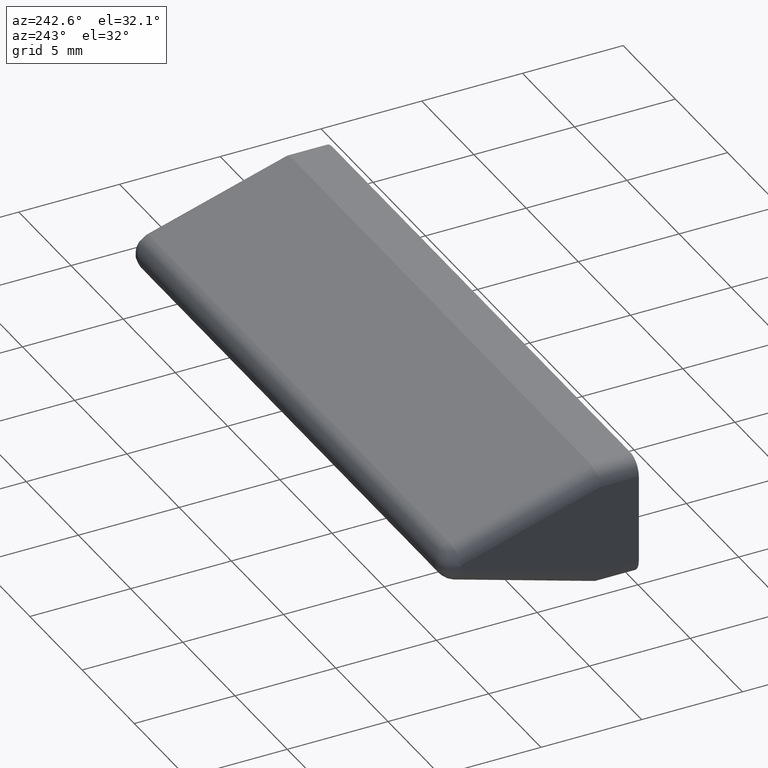
[diagram: clean part render]
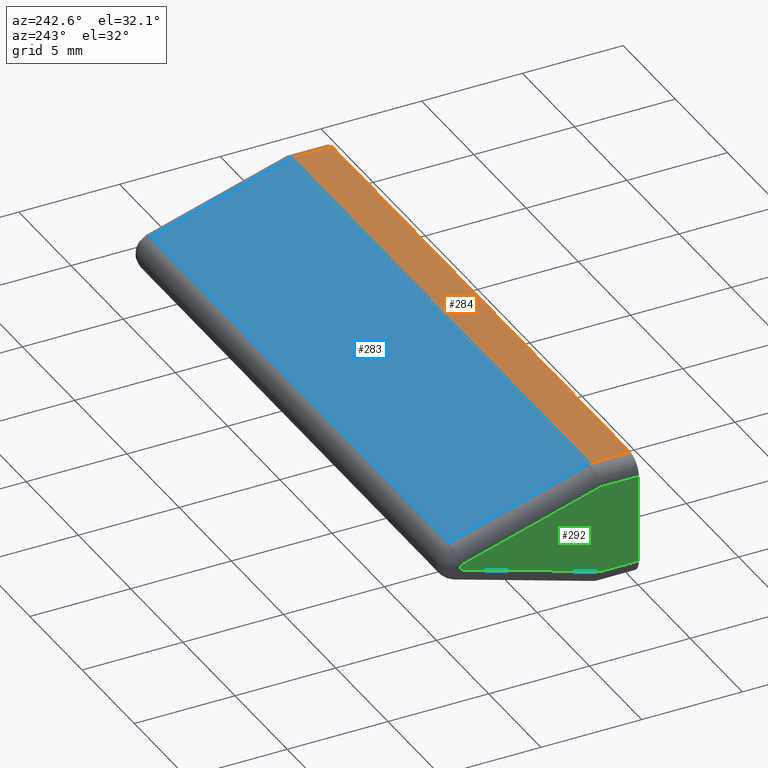
[diagram: same view with three faces highlighted in distinct colors, each labeled with its STEP entity id]
A machine part, auxiliary view with three faces highlighted in distinct colors.
Their STEP definitions:

[orange] entity #284 — the highlighted planar face has unit normal (0, 0, 1).
#16=PLANE('',#333);
#31=FACE_OUTER_BOUND('',#49,.T.);
#49=EDGE_LOOP('',(#216,#217,#218,#219));
#83=LINE('',#487,#107);
#86=LINE('',#496,#110);
#88=LINE('',#500,#112);
#89=LINE('',#501,#113);
#107=VECTOR('',#383,10.);
#110=VECTOR('',#392,10.);
#112=VECTOR('',#396,10.);
#113=VECTOR('',#397,10.);
#128=VERTEX_POINT('',#451);
#135=VERTEX_POINT('',#485);
#138=VERTEX_POINT('',#495);
#139=VERTEX_POINT('',#499);
#163=EDGE_CURVE('',#135,#128,#83,.T.);
#167=EDGE_CURVE('',#128,#138,#86,.T.);
#169=EDGE_CURVE('',#135,#139,#88,.T.);
#170=EDGE_CURVE('',#138,#139,#89,.T.);
#216=ORIENTED_EDGE('',*,*,#163,.F.);
#217=ORIENTED_EDGE('',*,*,#169,.T.);
#218=ORIENTED_EDGE('',*,*,#170,.F.);
#219=ORIENTED_EDGE('',*,*,#167,.F.);
#284=ADVANCED_FACE('',(#31),#16,.T.);
#333=AXIS2_PLACEMENT_3D('',#498,#394,#395);
#383=DIRECTION('',(0.,1.,0.));
#392=DIRECTION('',(1.,0.,0.));
#394=DIRECTION('center_axis',(0.,0.,1.));
#395=DIRECTION('ref_axis',(0.,-1.,0.));
#396=DIRECTION('',(1.,0.,0.));
#397=DIRECTION('',(0.,-1.,0.));
#451=CARTESIAN_POINT('',(-14.28,2.00999999999999,3.));
#485=CARTESIAN_POINT('',(-14.28,0.,3.));
#487=CARTESIAN_POINT('',(-14.28,3.42247130991928,3.));
#495=CARTESIAN_POINT('',(14.28,2.00999999999999,3.));
#496=CARTESIAN_POINT('',(0.,2.00999999999999,3.));
#498=CARTESIAN_POINT('Origin',(0.,2.00999999999999,3.));
#499=CARTESIAN_POINT('',(14.28,0.,3.));
#500=CARTESIAN_POINT('',(0.,0.,3.));
#501=CARTESIAN_POINT('',(14.28,3.42247130991928,3.));

[blue] entity #283 — the highlighted planar face has unit normal (0, 0.2877, 0.9577).
#15=PLANE('',#332);
#30=FACE_OUTER_BOUND('',#48,.T.);
#48=EDGE_LOOP('',(#212,#213,#214,#215));
#78=LINE('',#453,#102);
#84=LINE('',#490,#108);
#86=LINE('',#496,#110);
#87=LINE('',#497,#111);
#102=VECTOR('',#362,10.);
#108=VECTOR('',#386,10.);
#110=VECTOR('',#392,10.);
#111=VECTOR('',#393,10.);
#128=VERTEX_POINT('',#451);
#129=VERTEX_POINT('',#452);
#136=VERTEX_POINT('',#489);
#138=VERTEX_POINT('',#495);
#152=EDGE_CURVE('',#128,#129,#78,.T.);
#164=EDGE_CURVE('',#129,#136,#84,.T.);
#167=EDGE_CURVE('',#128,#138,#86,.T.);
#168=EDGE_CURVE('',#136,#138,#87,.T.);
#212=ORIENTED_EDGE('',*,*,#152,.F.);
#213=ORIENTED_EDGE('',*,*,#167,.T.);
#214=ORIENTED_EDGE('',*,*,#168,.F.);
#215=ORIENTED_EDGE('',*,*,#164,.F.);
#283=ADVANCED_FACE('',(#30),#15,.T.);
#332=AXIS2_PLACEMENT_3D('',#494,#390,#391);
#362=DIRECTION('',(0.,0.95772646284057,-0.287680417086199));
#386=DIRECTION('',(1.,0.,0.));
#390=DIRECTION('center_axis',(0.,0.287680417086199,0.95772646284057));
#391=DIRECTION('ref_axis',(0.,-0.95772646284057,0.287680417086199));
#392=DIRECTION('',(1.,0.,0.));
#393=DIRECTION('',(0.,-0.95772646284057,0.287680417086199));
#451=CARTESIAN_POINT('',(-14.28,2.00999999999999,3.));
#452=CARTESIAN_POINT('',(-14.28,9.00030483173816,0.900262875070134));
#453=CARTESIAN_POINT('',(-14.28,7.21400629100225,1.43682851168753));
#489=CARTESIAN_POINT('',(14.28,9.00030483173816,0.900262875070134));
#490=CARTESIAN_POINT('',(0.,9.00030483173816,0.900262875070134));
#494=CARTESIAN_POINT('Origin',(0.,9.00030483173816,0.900262875070134));
#495=CARTESIAN_POINT('',(14.28,2.00999999999999,3.));
#496=CARTESIAN_POINT('',(0.,2.00999999999999,3.));
#497=CARTESIAN_POINT('',(14.28,7.21400629100225,1.43682851168753));

[green] entity #292 — the highlighted planar face has unit normal (1, 0, 0).
#19=PLANE('',#347);
#39=FACE_OUTER_BOUND('',#57,.T.);
#57=EDGE_LOOP('',(#248,#249,#250,#251,#252,#253));
#67=CIRCLE('',#325,0.139999999999999);
#77=LINE('',#448,#101);
#79=LINE('',#457,#103);
#80=LINE('',#480,#104);
#82=LINE('',#484,#106);
#98=LINE('',#547,#122);
#101=VECTOR('',#357,10.);
#103=VECTOR('',#365,10.);
#104=VECTOR('',#376,10.);
#106=VECTOR('',#380,10.);
#122=VECTOR('',#434,10.);
#126=VERTEX_POINT('',#445);
#127=VERTEX_POINT('',#447);
#130=VERTEX_POINT('',#454);
#131=VERTEX_POINT('',#456);
#133=VERTEX_POINT('',#475);
#134=VERTEX_POINT('',#483);
#150=EDGE_CURVE('',#126,#127,#77,.T.);
#154=EDGE_CURVE('',#130,#131,#79,.T.);
#157=EDGE_CURVE('',#133,#130,#67,.T.);
#159=EDGE_CURVE('',#127,#133,#80,.T.);
#161=EDGE_CURVE('',#131,#134,#82,.T.);
#186=EDGE_CURVE('',#126,#134,#98,.T.);
#248=ORIENTED_EDGE('',*,*,#150,.F.);
#249=ORIENTED_EDGE('',*,*,#186,.T.);
#250=ORIENTED_EDGE('',*,*,#161,.F.);
#251=ORIENTED_EDGE('',*,*,#154,.F.);
#252=ORIENTED_EDGE('',*,*,#157,.F.);
#253=ORIENTED_EDGE('',*,*,#159,.F.);
#292=ADVANCED_FACE('',(#39),#19,.F.);
#325=AXIS2_PLACEMENT_3D('',#477,#370,#371);
#347=AXIS2_PLACEMENT_3D('',#546,#432,#433);
#357=DIRECTION('',(0.,1.,0.));
#365=DIRECTION('',(0.,-0.95772646284057,0.287680417086199));
#370=DIRECTION('center_axis',(1.,0.,0.));
#371=DIRECTION('ref_axis',(0.,1.,6.6436218228899E-16));
#376=DIRECTION('',(0.,0.95772646284057,0.287680417086199));
#380=DIRECTION('',(0.,-1.,0.));
#432=DIRECTION('center_axis',(1.,0.,0.));
#433=DIRECTION('ref_axis',(0.,0.,-1.));
#434=DIRECTION('',(0.,0.,1.));
#445=CARTESIAN_POINT('',(-15.08,0.,-2.2));
#447=CARTESIAN_POINT('',(-15.08,1.89244305931532,-2.2));
#448=CARTESIAN_POINT('',(-15.08,2.41747130991928,-2.2));
#454=CARTESIAN_POINT('',(-15.08,8.7701604980692,0.134081704797678));
#456=CARTESIAN_POINT('',(-15.08,1.89244305931532,2.2));
#457=CARTESIAN_POINT('',(-15.08,6.98386195733329,0.670647341415071));
#475=CARTESIAN_POINT('',(-15.08,8.7701604980692,-0.134081704797679));
#477=CARTESIAN_POINT('Origin',(-15.08,8.72988523967713,0.));
#480=CARTESIAN_POINT('',(-15.08,3.48870954146421,-1.72051590388));
#483=CARTESIAN_POINT('',(-15.08,0.,2.2));
#484=CARTESIAN_POINT('',(-15.08,3.42247130991928,2.2));
#546=CARTESIAN_POINT('Origin',(-15.08,4.83494261983857,0.));
#547=CARTESIAN_POINT('',(-15.08,0.,3.));